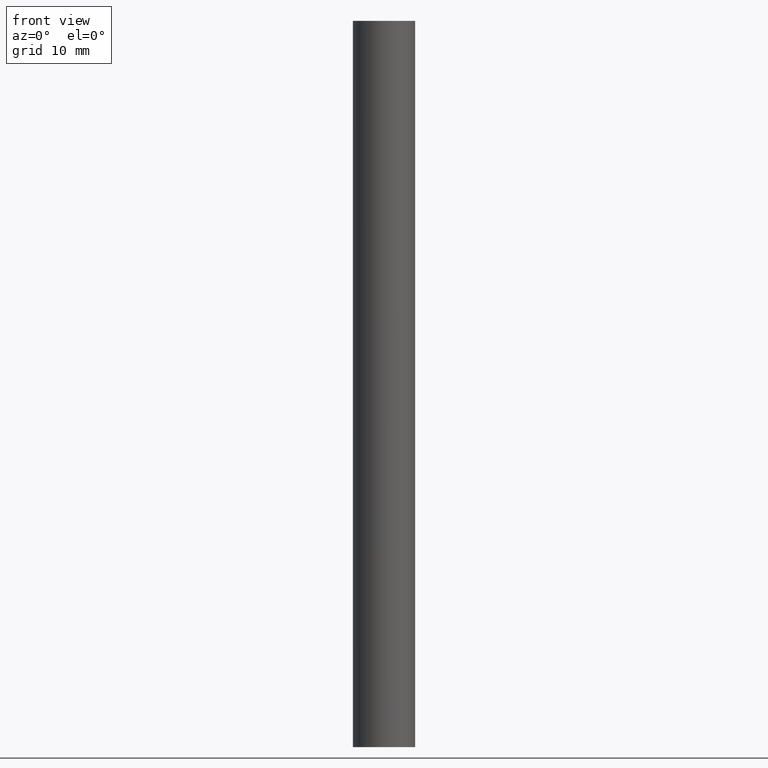
[diagram: clean part render]
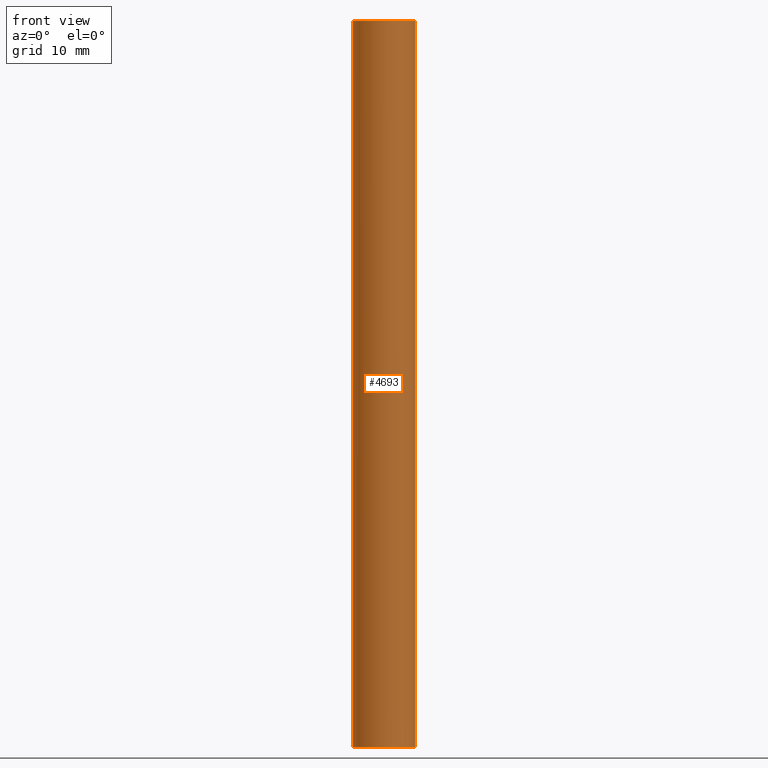
[diagram: same view with one face highlighted and labeled with its STEP entity id]
A machine part, front view. The second image highlights one B-rep face of the part: STEP entity #4693.
In plain terms, the highlighted cylindrical surface (bore or boss wall) has radius 3 mm, axis along (-0, -0, -1).
Its self-contained STEP definition (entity closure, byte-faithful):
#287 = EDGE_LOOP ( 'NONE', ( #2539 ) ) ;
#1062 = EDGE_LOOP ( 'NONE', ( #10295 ) ) ;
#1704 = AXIS2_PLACEMENT_3D ( 'NONE', #11922, #5387, #3353 ) ;
#1764 = VERTEX_POINT ( 'NONE', #4653 ) ;
#2081 = EDGE_CURVE ( 'NONE', #1764, #1764, #10777, .T. ) ;
#2539 = ORIENTED_EDGE ( 'NONE', *, *, #2081, .F. ) ;
#2990 = DIRECTION ( 'NONE',  ( -1.000000000000000000, 0.000000000000000000, 0.000000000000000000 ) ) ;
#3353 = DIRECTION ( 'NONE',  ( 1.000000000000000000, 0.000000000000000000, 0.000000000000000000 ) ) ;
#3397 = AXIS2_PLACEMENT_3D ( 'NONE', #4637, #9988, #11173 ) ;
#4170 = VERTEX_POINT ( 'NONE', #8917 ) ;
#4637 = CARTESIAN_POINT ( 'NONE',  ( 0.000000000000000000, 0.000000000000000000, 35.00000000000000000 ) ) ;
#4653 = CARTESIAN_POINT ( 'NONE',  ( 3.000000000000000444, 0.000000000000000000, 35.00000000000000000 ) ) ;
#4693 = ADVANCED_FACE ( 'NONE', ( #5451, #13942 ), #8137, .T. ) ;
#4799 = AXIS2_PLACEMENT_3D ( 'NONE', #12746, #7296, #2990 ) ;
#5387 = DIRECTION ( 'NONE',  ( 0.000000000000000000, 0.000000000000000000, 1.000000000000000000 ) ) ;
#5451 = FACE_OUTER_BOUND ( 'NONE', #287, .T. ) ;
#5659 = CIRCLE ( 'NONE', #1704, 3.000000000000000444 ) ;
#7296 = DIRECTION ( 'NONE',  ( -0.000000000000000000, -0.000000000000000000, -1.000000000000000000 ) ) ;
#8137 = CYLINDRICAL_SURFACE ( 'NONE', #4799, 3.000000000000000444 ) ;
#8917 = CARTESIAN_POINT ( 'NONE',  ( 3.000000000000000444, 0.000000000000000000, -35.00000000000000000 ) ) ;
#9988 = DIRECTION ( 'NONE',  ( 0.000000000000000000, 0.000000000000000000, 1.000000000000000000 ) ) ;
#10295 = ORIENTED_EDGE ( 'NONE', *, *, #13944, .T. ) ;
#10777 = CIRCLE ( 'NONE', #3397, 3.000000000000000444 ) ;
#11173 = DIRECTION ( 'NONE',  ( 1.000000000000000000, 0.000000000000000000, 0.000000000000000000 ) ) ;
#11922 = CARTESIAN_POINT ( 'NONE',  ( 0.000000000000000000, 0.000000000000000000, -35.00000000000000000 ) ) ;
#12746 = CARTESIAN_POINT ( 'NONE',  ( 0.000000000000000000, 0.000000000000000000, 35.00000000000000000 ) ) ;
#13942 = FACE_OUTER_BOUND ( 'NONE', #1062, .T. ) ;
#13944 = EDGE_CURVE ( 'NONE', #4170, #4170, #5659, .T. ) ;